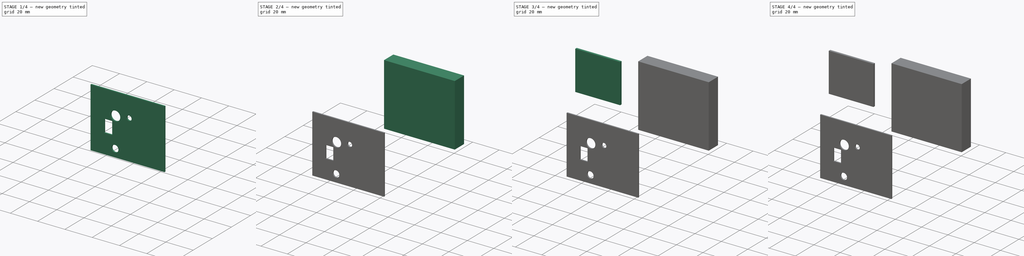
[diagram: build sequence overview — one tinted view per stage of 4, left to right]
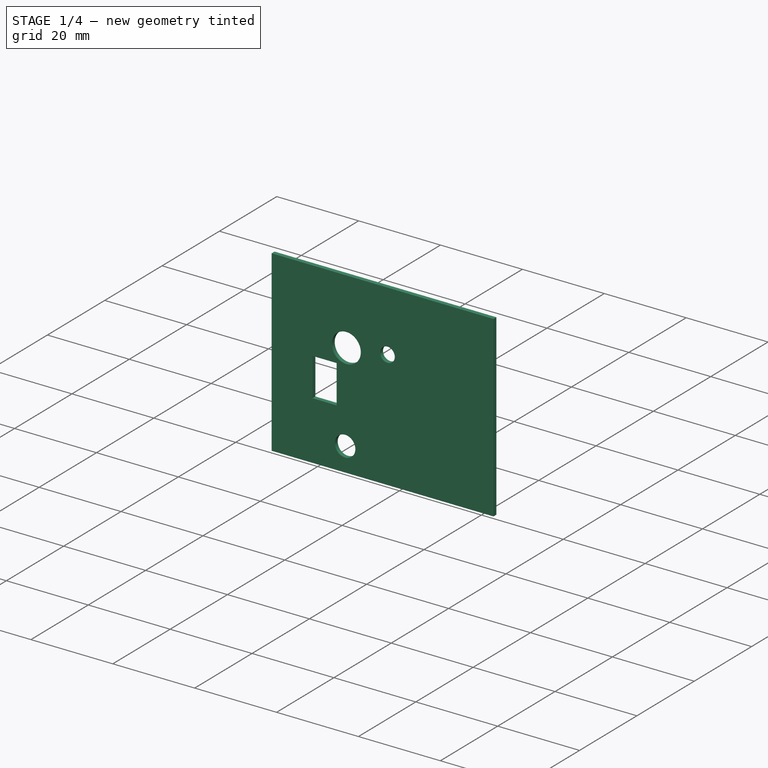
[diagram: stage 1 of 4 — iso view after this stage's code; geometry added in this stage tinted green]
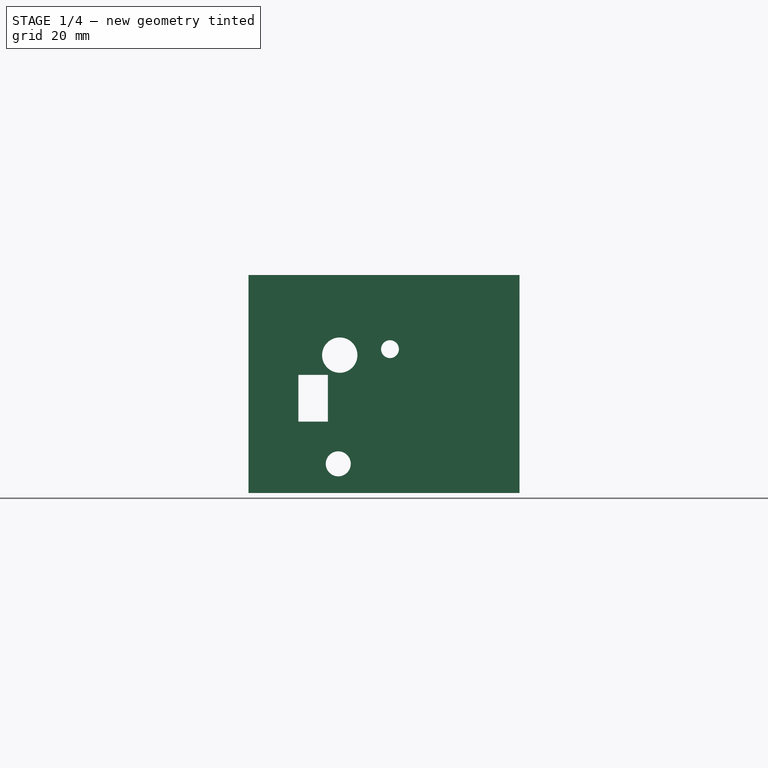
[diagram: stage 1 of 4 — front view after this stage's code; geometry added in this stage tinted green]
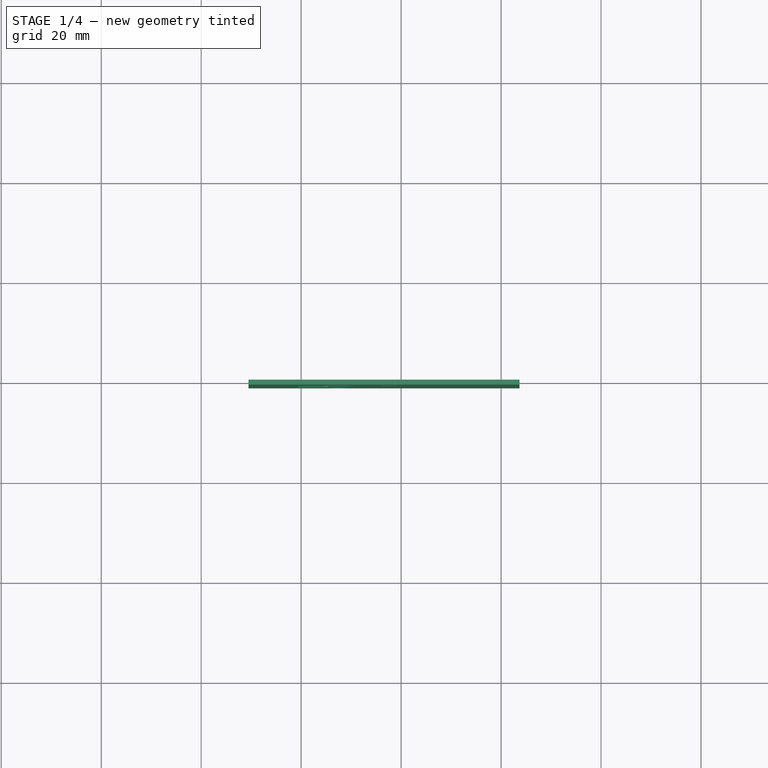
[diagram: stage 1 of 4 — top view after this stage's code; geometry added in this stage tinted green]
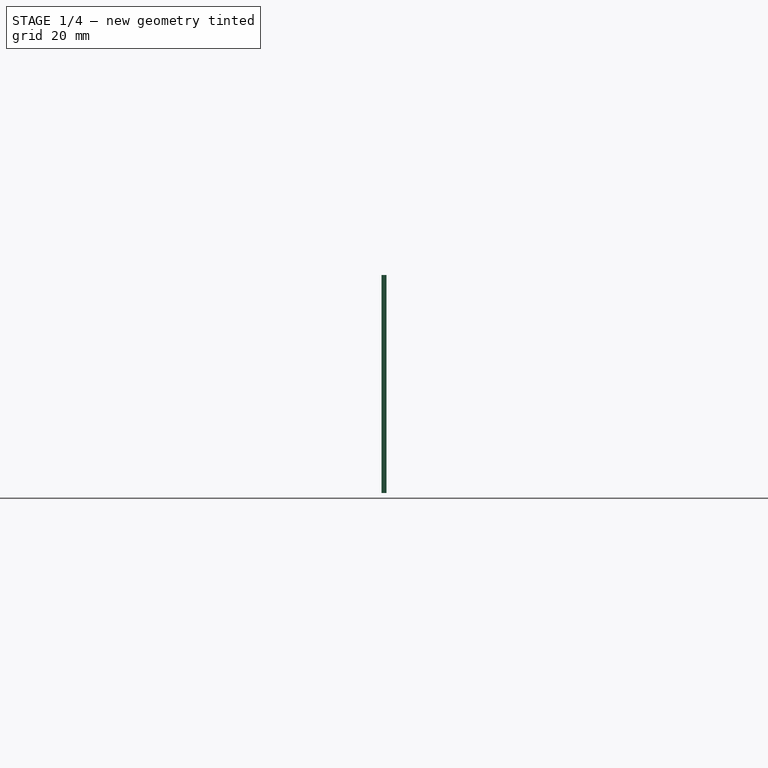
[diagram: stage 1 of 4 — right view after this stage's code; geometry added in this stage tinted green]
FCSTD DOCUMENT  (FreeCAD 0.18.4R)
Label: end_build
License: All rights reserved
LicenseURL: http://en.wikipedia.org/wiki/All_rights_reserved
objects: Sketcher::SketchObject×12, PartDesign::Body×8, PartDesign::Pad×7, App::MeasureDistance×2, PartDesign::Pocket×2
note: 38 computed .brp shape members not serialized (recipe doc carries the construction recipe); baked Part::Feature solids carry a one-line shape summary decoded from their .brp

FEATURE [PartDesign::Body] Body006
  Group = -> [Sketch005,Pad005,Sketch006,Sketch007,Pocket]
  Origin = -> Origin006
  Tip = -> Pocket
FEATURE [Sketcher::SketchObject] Sketch008
  MapMode = 5
  Placement = pos=(0,0,0) rot=(1,0,0;1.5708rad)
  Support = -> [XZ_Plane007]
  sketch-geometry (4):
    g0: LineSegment StartX=-30.5253 StartY=-30.7493 StartZ=0 EndX=23.6721 EndY=-30.7493 EndZ=0
    g1: LineSegment StartX=23.6721 StartY=-30.7493 StartZ=0 EndX=23.6721 EndY=-74.3427 EndZ=0
    g2: LineSegment StartX=23.6721 StartY=-74.3427 StartZ=0 EndX=-30.5253 EndY=-74.3427 EndZ=0
    g3: LineSegment StartX=-30.5253 StartY=-74.3427 StartZ=0 EndX=-30.5253 EndY=-30.7493 EndZ=0
  constraints (8):
    c: Coincident(g0,g1)
    c: Coincident(g1,g2)
    c: Coincident(g2,g3)
    c: Coincident(g3,g0)
    c: Horizontal(g0)
    c: Horizontal(g2)
    c: Vertical(g1)
    c: Vertical(g3)
FEATURE [PartDesign::Pad] Pad006
  Length = 1
  Length2 = 100
  Placement = pos=(0,0,0) rot=(1,0,0;1.5708rad)
  Profile = -> Sketch008
  Type = 0
FEATURE [Sketcher::SketchObject] Sketch009
  MapMode = 5
  Placement = pos=(0,0,0) rot=(-1,0,0;1.5708rad)
  Support = -> [Pad006]
FEATURE [Sketcher::SketchObject] Sketch010
  MapMode = 5
  Placement = pos=(0,0,0) rot=(-1,0,0;1.5708rad)
  Support = -> [Pad006]
FEATURE [Sketcher::SketchObject] Sketch011
  MapMode = 5
  Placement = pos=(0,0,0) rot=(-1,0,0;1.5708rad)
  Support = -> [Pad006]
  sketch-geometry (7):
    g0: Circle CenterX=-12.2808 CenterY=46.7707 CenterZ=0 NormalX=0 NormalY=0 NormalZ=1 AngleXU=0 Radius=3.53276
    g1: Circle CenterX=-2.23062 CenterY=45.5753 CenterZ=0 NormalX=0 NormalY=0 NormalZ=1 AngleXU=0 Radius=1.78406
    g2: Circle CenterX=-12.5782 CenterY=68.5183 CenterZ=0 NormalX=0 NormalY=0 NormalZ=1 AngleXU=0 Radius=2.50122
    g3: LineSegment StartX=-20.547 StartY=60.0678 StartZ=0 EndX=-14.6596 EndY=60.0678 EndZ=0
    g4: LineSegment StartX=-14.6596 StartY=60.0678 StartZ=0 EndX=-14.6596 EndY=50.7312 EndZ=0
    g5: LineSegment StartX=-14.6596 StartY=50.7312 StartZ=0 EndX=-20.547 EndY=50.7312 EndZ=0
    g6: LineSegment StartX=-20.547 StartY=50.7312 StartZ=0 EndX=-20.547 EndY=60.0678 EndZ=0
  constraints (8):
    c: Coincident(g3,g4)
    c: Coincident(g4,g5)
    c: Coincident(g5,g6)
    c: Coincident(g6,g3)
    c: Horizontal(g3)
    c: Horizontal(g5)
    c: Vertical(g4)
    c: Vertical(g6)
FEATURE [PartDesign::Pocket] Pocket001
  BaseFeature = -> Pad006
  Length = 5
  Length2 = 100
  Placement = pos=(0,0,0) rot=(1,0,0;1.5708rad)
  Profile = -> Sketch011
  Type = 0
FEATURE [PartDesign::Body] Body007
  Group = -> [Sketch008,Pad006,Sketch009,Sketch010,Sketch011,Pocket001]
  Origin = -> Origin007
  Tip = -> Pocket001
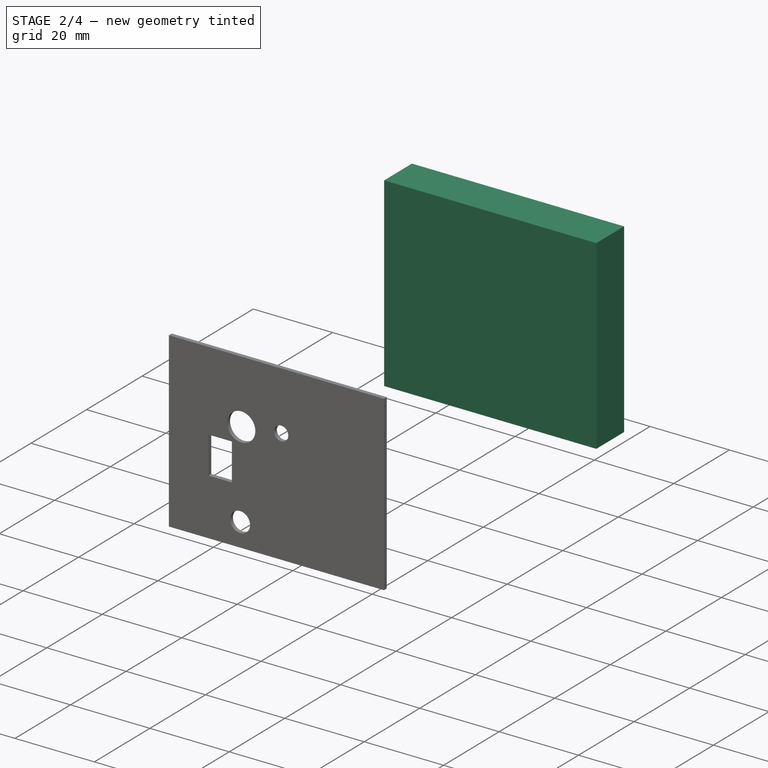
[diagram: stage 2 of 4 — iso view after this stage's code; geometry added in this stage tinted green]
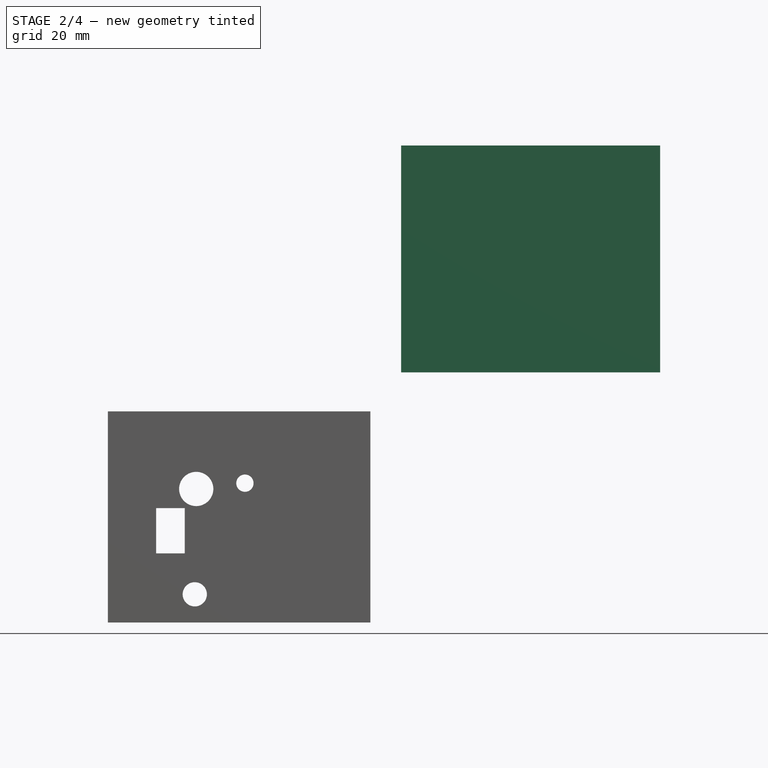
[diagram: stage 2 of 4 — front view after this stage's code; geometry added in this stage tinted green]
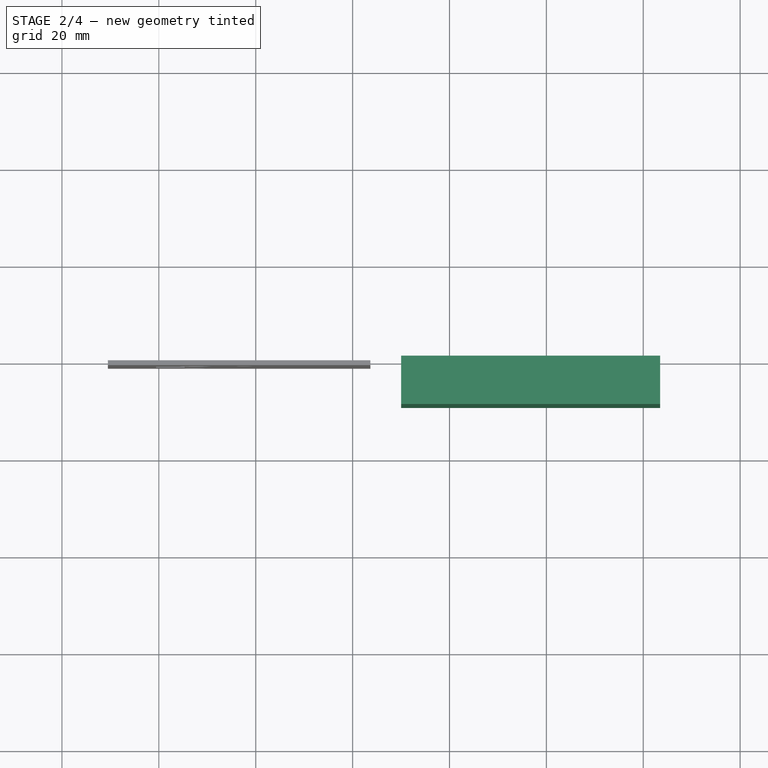
[diagram: stage 2 of 4 — top view after this stage's code; geometry added in this stage tinted green]
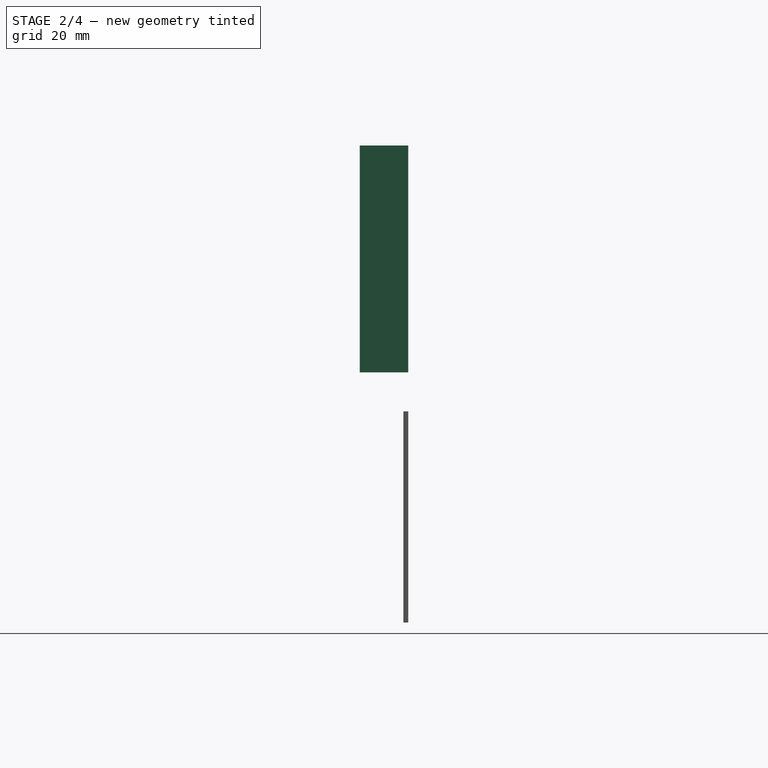
[diagram: stage 2 of 4 — right view after this stage's code; geometry added in this stage tinted green]
FEATURE [PartDesign::Body] Body
  Group = -> [Sketch,Pad,Sketch001,Pad001,Sketch002,Pad002,Sketch003,Pad003,Sketch004,Pad004]
  Origin = -> Origin
  Tip = -> Pad004
FEATURE [PartDesign::Body] Body001
  Origin = -> Origin001
FEATURE [PartDesign::Body] Body002
  Origin = -> Origin002
FEATURE [PartDesign::Body] Body003
  Origin = -> Origin003
FEATURE [PartDesign::Body] Body004
  Origin = -> Origin004
FEATURE [PartDesign::Body] Body005
  Origin = -> Origin005
FEATURE [Sketcher::SketchObject] Sketch005
  MapMode = 5
  Placement = pos=(0,0,0) rot=(1,0,0;1.5708rad)
  Support = -> [XZ_Plane006]
  sketch-geometry (4):
    g0: LineSegment StartX=30.0192 StartY=24.1374 StartZ=0 EndX=83.4887 EndY=24.1374 EndZ=0
    g1: LineSegment StartX=83.4887 StartY=24.1374 StartZ=0 EndX=83.4887 EndY=-22.7146 EndZ=0
    g2: LineSegment StartX=83.4887 StartY=-22.7146 StartZ=0 EndX=30.0192 EndY=-22.7146 EndZ=0
    g3: LineSegment StartX=30.0192 StartY=-22.7146 StartZ=0 EndX=30.0192 EndY=24.1374 EndZ=0
  constraints (8):
    c: Coincident(g0,g1)
    c: Coincident(g1,g2)
    c: Coincident(g2,g3)
    c: Coincident(g3,g0)
    c: Horizontal(g0)
    c: Horizontal(g2)
    c: Vertical(g1)
    c: Vertical(g3)
FEATURE [PartDesign::Pad] Pad005
  Length = 10
  Length2 = 100
  Placement = pos=(0,0,0) rot=(1,0,0;1.5708rad)
  Profile = -> Sketch005
  Type = 0
FEATURE [Sketcher::SketchObject] Sketch006
  MapMode = 5
  Placement = pos=(0,0,0) rot=(-1,0,0;1.5708rad)
  Support = -> [Pad005]
FEATURE [App::MeasureDistance] Distance  label="Distance: 33,98 mm"
  Distance = 33.9824
  P1 = (-23.5591,1.69372e-06,-14.208)
  P2 = (10.4228,1.67278e-06,-14.0323)
FEATURE [App::MeasureDistance] Distance001  label="Distance: 29,18 mm"
  Distance = 29.1835
  P1 = (-23.5591,1.66129e-06,-13.9359)
  P2 = (-23.5591,-1.81766e-06,15.2476)
FEATURE [Sketcher::SketchObject] Sketch007
  MapMode = 5
  Placement = pos=(0,0,0) rot=(-1,0,0;1.5708rad)
  Support = -> [Pad005]
  sketch-geometry (4):
    g0: LineSegment StartX=37.5783 StartY=14.1458 StartZ=0 EndX=72.2667 EndY=14.1458 EndZ=0
    g1: LineSegment StartX=72.2667 StartY=14.1458 StartZ=0 EndX=72.2667 EndY=-16.5503 EndZ=0
    g2: LineSegment StartX=72.2667 StartY=-16.5503 StartZ=0 EndX=37.5783 EndY=-16.5503 EndZ=0
    g3: LineSegment StartX=37.5783 StartY=-16.5503 StartZ=0 EndX=37.5783 EndY=14.1458 EndZ=0
  constraints (8):
    c: Coincident(g0,g1)
    c: Coincident(g1,g2)
    c: Coincident(g2,g3)
    c: Coincident(g3,g0)
    c: Horizontal(g0)
    c: Horizontal(g2)
    c: Vertical(g1)
    c: Vertical(g3)
FEATURE [PartDesign::Pocket] Pocket
  BaseFeature = -> Pad005
  Length = 1.6
  Length2 = 100
  Placement = pos=(0,0,0) rot=(1,0,0;1.5708rad)
  Profile = -> Sketch007
  Type = 0
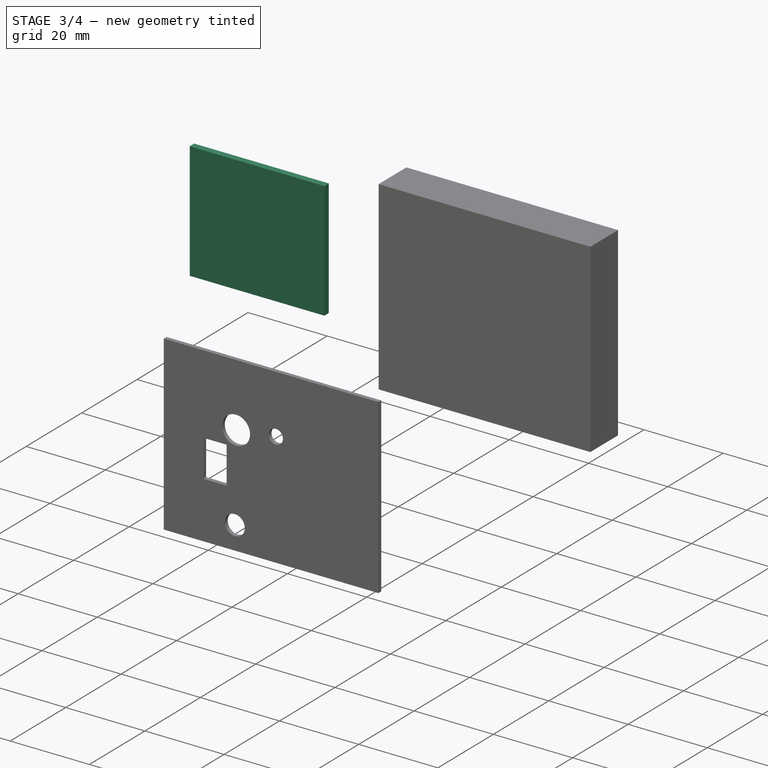
[diagram: stage 3 of 4 — iso view after this stage's code; geometry added in this stage tinted green]
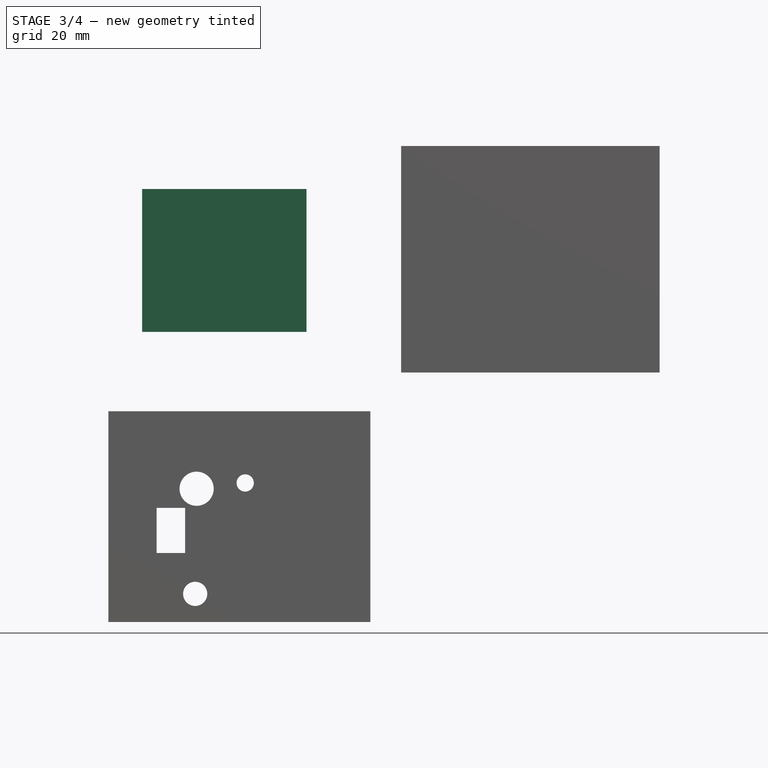
[diagram: stage 3 of 4 — front view after this stage's code; geometry added in this stage tinted green]
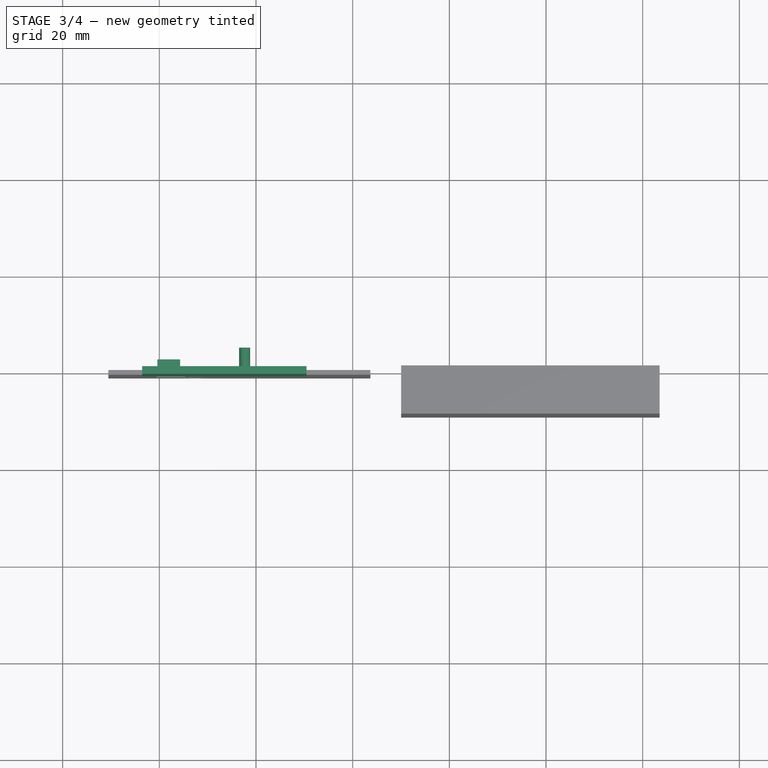
[diagram: stage 3 of 4 — top view after this stage's code; geometry added in this stage tinted green]
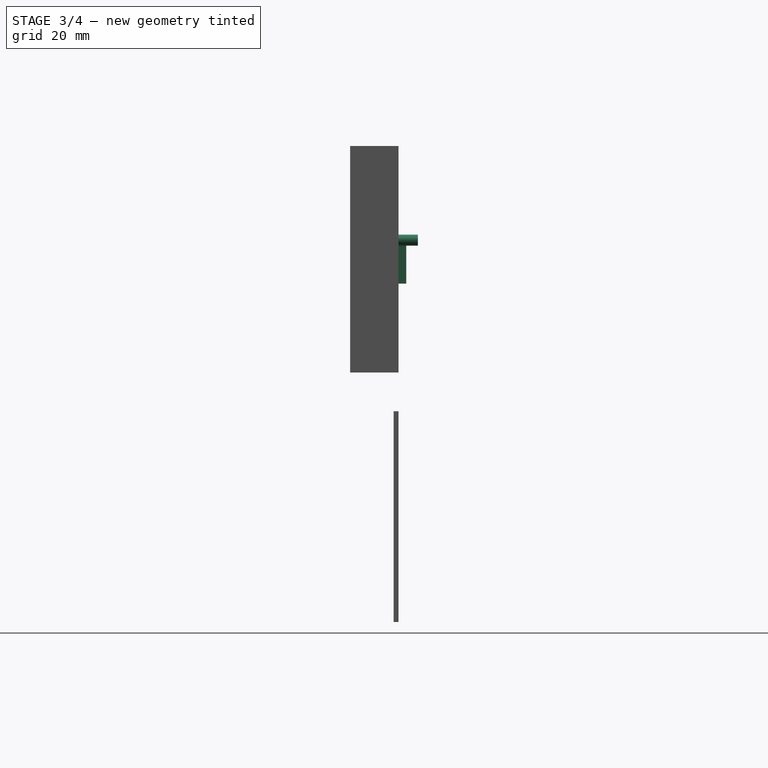
[diagram: stage 3 of 4 — right view after this stage's code; geometry added in this stage tinted green]
FEATURE [Sketcher::SketchObject] Sketch
  MapMode = 5
  Placement = pos=(0,0,0) rot=(1,0,0;1.5708rad)
  Support = -> [XZ_Plane]
  sketch-geometry (4):
    g0: LineSegment StartX=-23.5591 StartY=15.2476 StartZ=0 EndX=10.4441 EndY=15.2476 EndZ=0
    g1: LineSegment StartX=10.4441 StartY=15.2476 StartZ=0 EndX=10.4441 EndY=-14.3308 EndZ=0
    g2: LineSegment StartX=10.4441 StartY=-14.3308 StartZ=0 EndX=-23.5591 EndY=-14.3308 EndZ=0
    g3: LineSegment StartX=-23.5591 StartY=-14.3308 StartZ=0 EndX=-23.5591 EndY=15.2476 EndZ=0
  constraints (8):
    c: Coincident(g0,g1)
    c: Coincident(g1,g2)
    c: Coincident(g2,g3)
    c: Coincident(g3,g0)
    c: Horizontal(g0)
    c: Horizontal(g2)
    c: Vertical(g1)
    c: Vertical(g3)
FEATURE [PartDesign::Pad] Pad
  Length = 1.6
  Length2 = 100
  Placement = pos=(0,0,0) rot=(1,0,0;1.5708rad)
  Profile = -> Sketch
  Type = 0
FEATURE [Sketcher::SketchObject] Sketch001
  MapMode = 5
  Placement = pos=(0,0,0) rot=(-1,0,0;1.5708rad)
  Support = -> [Pad]
  sketch-geometry (4):
    g0: LineSegment StartX=-20.3996 StartY=4.33757 StartZ=0 EndX=-15.7016 EndY=4.33757 EndZ=0
    g1: LineSegment StartX=-15.7016 StartY=4.33757 StartZ=0 EndX=-15.7016 EndY=-3.75018 EndZ=0
    g2: LineSegment StartX=-15.7016 StartY=-3.75018 StartZ=0 EndX=-20.3996 EndY=-3.75018 EndZ=0
    g3: LineSegment StartX=-20.3996 StartY=-3.75018 StartZ=0 EndX=-20.3996 EndY=4.33757 EndZ=0
  constraints (8):
    c: Coincident(g0,g1)
    c: Coincident(g1,g2)
    c: Coincident(g2,g3)
    c: Coincident(g3,g0)
    c: Horizontal(g0)
    c: Horizontal(g2)
    c: Vertical(g1)
    c: Vertical(g3)
FEATURE [PartDesign::Pad] Pad001
  BaseFeature = -> Pad
  Length = 1.6
  Length2 = 100
  Placement = pos=(0,0,0) rot=(1,0,0;1.5708rad)
  Profile = -> Sketch001
  Type = 0
FEATURE [Sketcher::SketchObject] Sketch002
  MapMode = 5
  Placement = pos=(0,0,0) rot=(-1,0,0;1.5708rad)
  Support = -> [Pad001]
  sketch-geometry (1):
    g0: Circle CenterX=-2.35031 CenterY=-4.66057 CenterZ=0 NormalX=0 NormalY=0 NormalZ=1 AngleXU=0 Radius=1.14236
FEATURE [PartDesign::Pad] Pad002
  BaseFeature = -> Pad001
  Length = 4
  Length2 = 100
  Placement = pos=(0,0,0) rot=(1,0,0;1.5708rad)
  Profile = -> Sketch002
  Type = 0
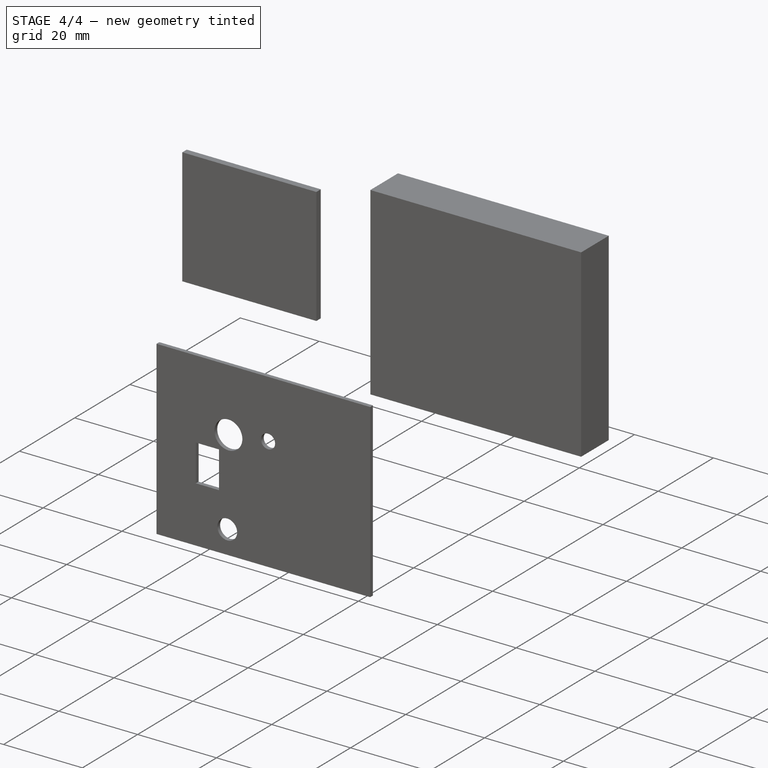
[diagram: stage 4 of 4 — iso view after this stage's code; geometry added in this stage tinted green]
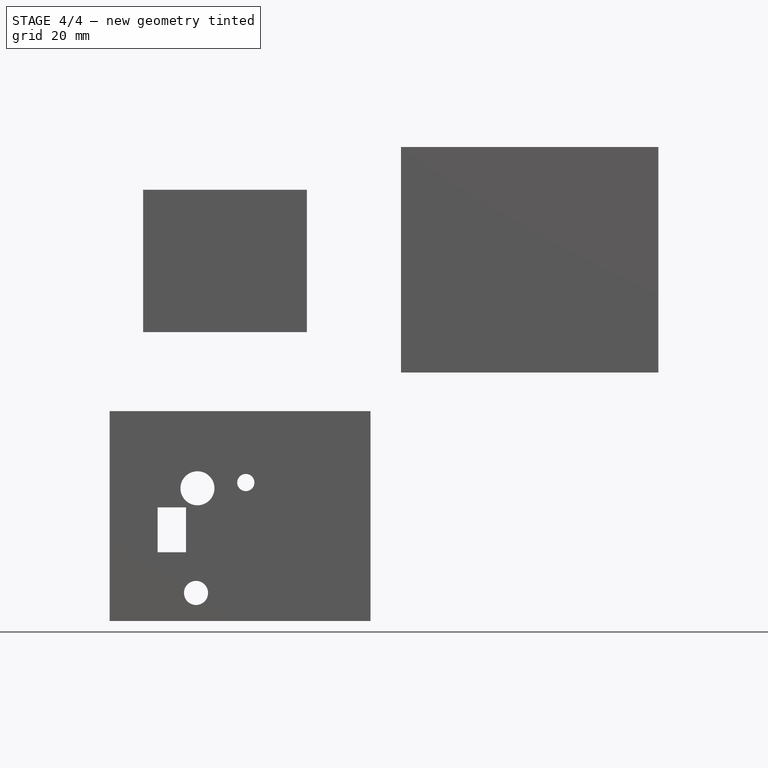
[diagram: stage 4 of 4 — front view after this stage's code; geometry added in this stage tinted green]
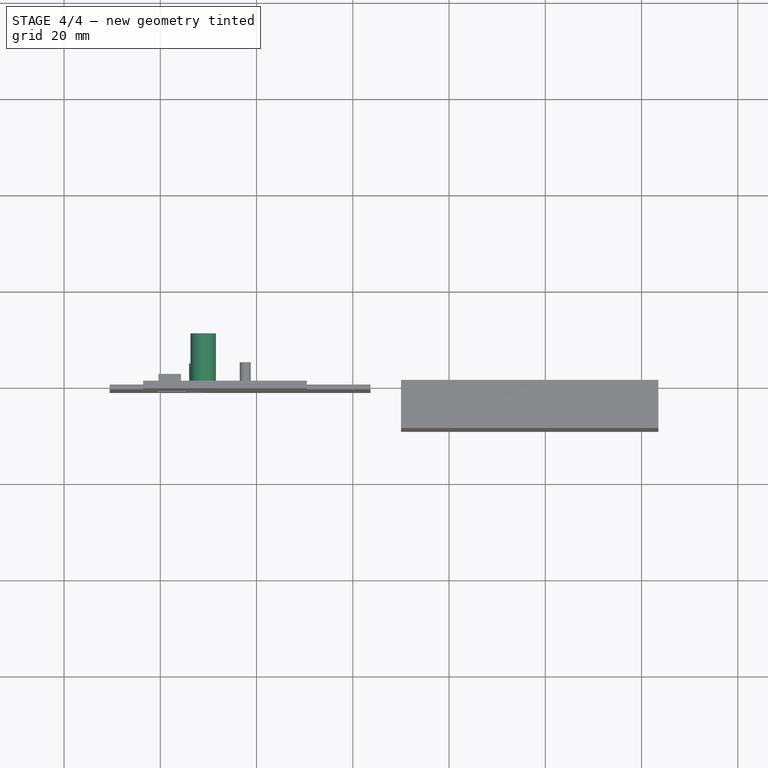
[diagram: stage 4 of 4 — top view after this stage's code; geometry added in this stage tinted green]
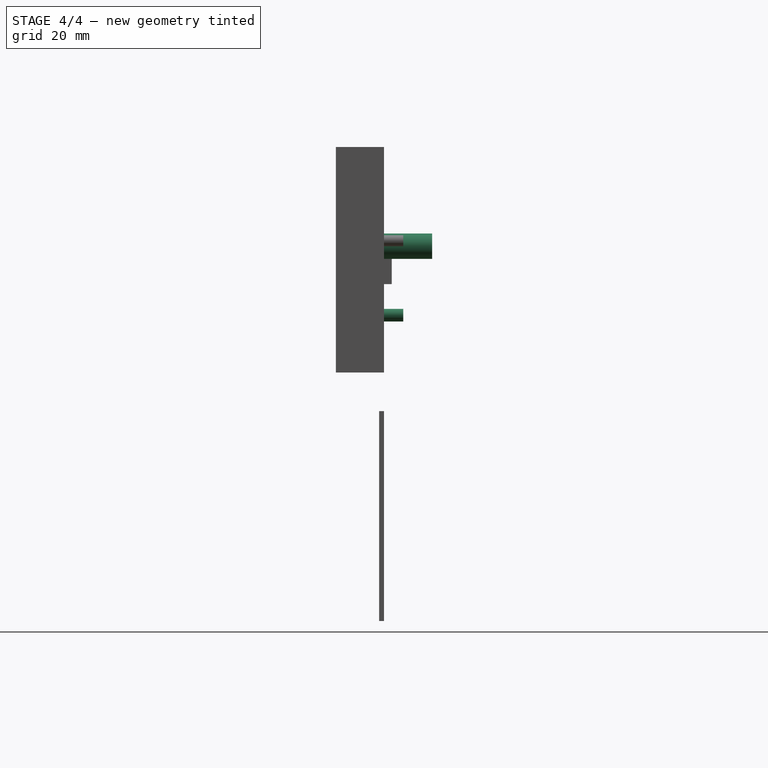
[diagram: stage 4 of 4 — right view after this stage's code; geometry added in this stage tinted green]
FEATURE [Sketcher::SketchObject] Sketch003
  MapMode = 5
  Placement = pos=(0,0,0) rot=(-1,0,0;1.5708rad)
  Support = -> [Pad002]
  sketch-geometry (1):
    g0: Circle CenterX=-12.6979 CenterY=10.8013 CenterZ=0 NormalX=0 NormalY=0 NormalZ=1 AngleXU=0 Radius=1.30425
FEATURE [PartDesign::Pad] Pad003
  BaseFeature = -> Pad002
  Length = 4
  Length2 = 100
  Placement = pos=(0,0,0) rot=(1,0,0;1.5708rad)
  Profile = -> Sketch003
  Type = 0
FEATURE [Sketcher::SketchObject] Sketch004
  MapMode = 5
  Placement = pos=(0,0,0) rot=(-1,0,0;1.5708rad)
  Support = -> [Pad003]
  sketch-geometry (1):
    g0: Circle CenterX=-11.0922 CenterY=-3.53067 CenterZ=0 NormalX=0 NormalY=0 NormalZ=1 AngleXU=0 Radius=2.62876
FEATURE [PartDesign::Pad] Pad004
  BaseFeature = -> Pad003
  Length = 10
  Length2 = 100
  Placement = pos=(0,0,0) rot=(1,0,0;1.5708rad)
  Profile = -> Sketch004
  Type = 0
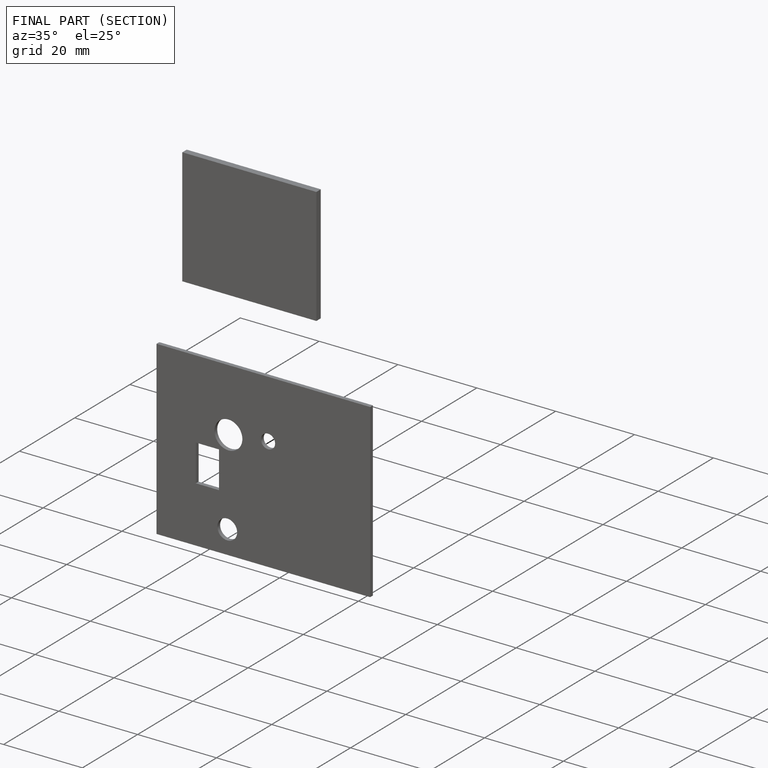
[diagram: finished part — half-section view (interior)]
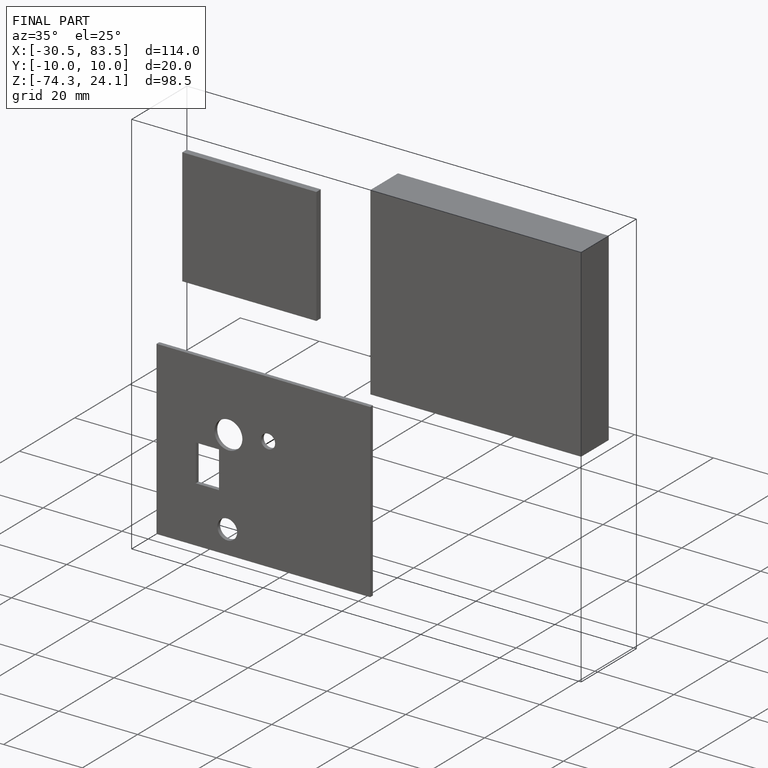
[diagram: finished part — iso view with bounding-box wireframe]
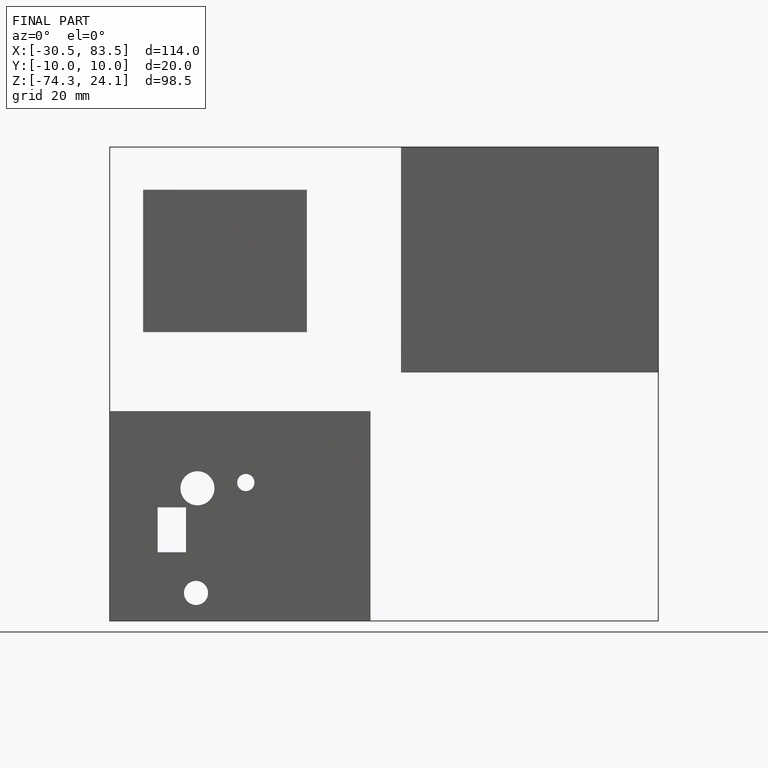
[diagram: finished part — front view with bounding-box wireframe]
